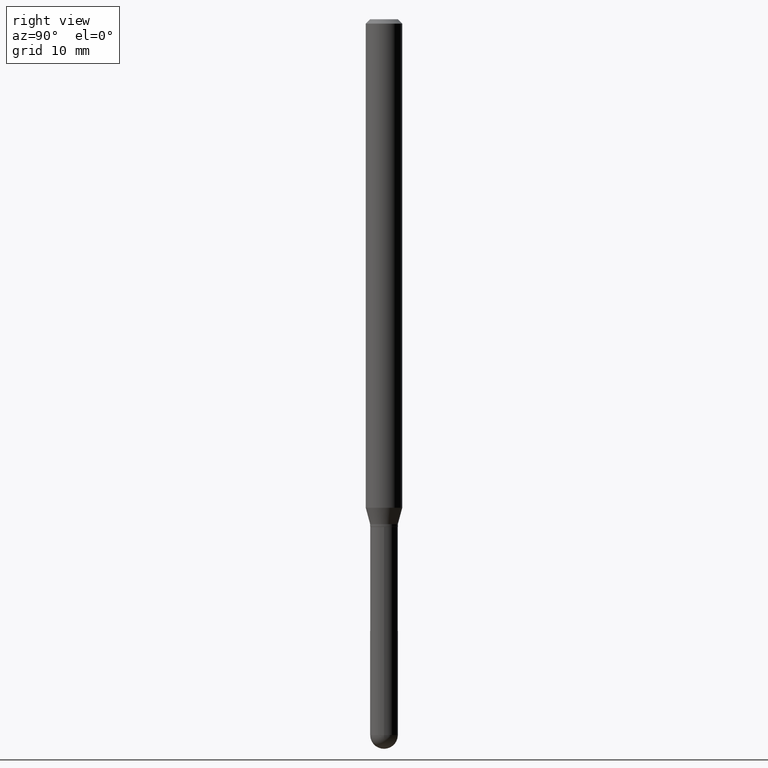
[diagram: clean part render]
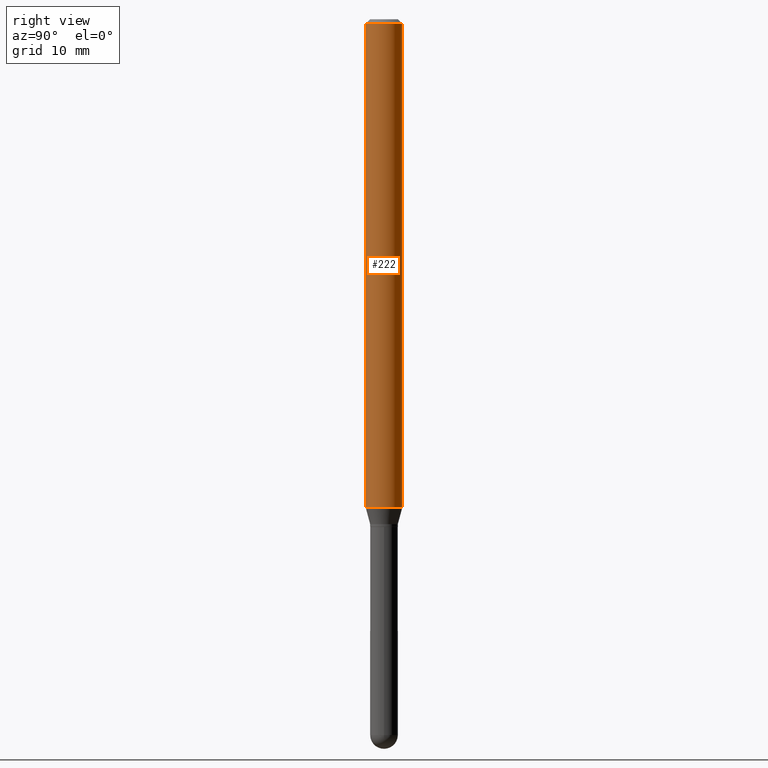
[diagram: same view with one face highlighted and labeled with its STEP entity id]
A machine part, right view. The second image highlights one B-rep face of the part: STEP entity #222.
In plain terms, the highlighted cylindrical surface (edge-blend (fillet) strip) has radius 1.5875 mm, axis along (-0, 0, 1).
Its self-contained STEP definition (entity closure, byte-faithful):
#32 = CARTESIAN_POINT ( 'NONE',  ( 4.440892098501036369E-16, 0.06249999999999418521, -1.674019237886466227 ) ) ;
#45 = CARTESIAN_POINT ( 'NONE',  ( -4.364351673553916201E-16, -0.06250000000000000000, 2.182179900900756299E-16 ) ) ;
#80 = ORIENTED_EDGE ( 'NONE', *, *, #402, .T. ) ;
#82 = DIRECTION ( 'NONE',  ( -2.445464265445177079E-29, 3.491487841441210472E-15, 1.000000000000000000 ) ) ;
#114 = CARTESIAN_POINT ( 'NONE',  ( 4.440892098500625669E-16, 0.06250000000000000000, -2.182179900900756299E-16 ) ) ;
#115 = CARTESIAN_POINT ( 'NONE',  ( -4.364351673553912750E-16, -0.06250000000000005551, -0.01499999999999979128 ) ) ;
#121 = CARTESIAN_POINT ( 'NONE',  ( 4.440892098501038342E-16, 0.06249999999999995143, -0.01500000000000022669 ) ) ;
#135 = AXIS2_PLACEMENT_3D ( 'NONE', #162, #327, #172 ) ;
#137 = EDGE_CURVE ( 'NONE', #394, #446, #190, .T. ) ;
#153 = ORIENTED_EDGE ( 'NONE', *, *, #470, .T. ) ;
#160 = DIRECTION ( 'NONE',  ( -2.445464265445177359E-29, 3.491487841441210078E-15, 1.000000000000000000 ) ) ;
#162 = CARTESIAN_POINT ( 'NONE',  ( 4.093754225919121089E-29, -5.844817815419276990E-15, -1.674019237886465783 ) ) ;
#163 = AXIS2_PLACEMENT_3D ( 'NONE', #422, #457, #507 ) ;
#172 = DIRECTION ( 'NONE',  ( -6.982962677686265922E-15, -1.000000000000000000, 4.370956789862821150E-15 ) ) ;
#190 = LINE ( 'NONE', #45, #350 ) ;
#193 = ORIENTED_EDGE ( 'NONE', *, *, #453, .F. ) ;
#206 = VECTOR ( 'NONE', #82, 39.37007874015748143 ) ;
#222 = ADVANCED_FACE ( 'NONE', ( #501 ), #464, .T. ) ;
#276 = VERTEX_POINT ( 'NONE', #32 ) ;
#277 = CARTESIAN_POINT ( 'NONE',  ( 3.668196398167768421E-31, -5.237231762161818937E-17, -0.01500000000000000812 ) ) ;
#281 = ORIENTED_EDGE ( 'NONE', *, *, #137, .F. ) ;
#327 = DIRECTION ( 'NONE',  ( -2.445464265445177359E-29, 3.491487841441210078E-15, 1.000000000000000000 ) ) ;
#349 = CARTESIAN_POINT ( 'NONE',  ( -4.364351673553505007E-16, -0.06250000000000581479, -1.674019237886465561 ) ) ;
#350 = VECTOR ( 'NONE', #354, 39.37007874015748143 ) ;
#354 = DIRECTION ( 'NONE',  ( -2.445464265445177079E-29, 3.491487841441210472E-15, 1.000000000000000000 ) ) ;
#358 = EDGE_LOOP ( 'NONE', ( #153, #80, #193, #281 ) ) ;
#362 = VERTEX_POINT ( 'NONE', #121 ) ;
#367 = AXIS2_PLACEMENT_3D ( 'NONE', #277, #160, #481 ) ;
#394 = VERTEX_POINT ( 'NONE', #349 ) ;
#395 = LINE ( 'NONE', #114, #206 ) ;
#401 = CIRCLE ( 'NONE', #367, 0.06250000000000000000 ) ;
#402 = EDGE_CURVE ( 'NONE', #276, #362, #395, .T. ) ;
#422 = CARTESIAN_POINT ( 'NONE',  ( 0.000000000000000000, 0.000000000000000000, 0.000000000000000000 ) ) ;
#431 = CIRCLE ( 'NONE', #135, 0.06250000000000000000 ) ;
#446 = VERTEX_POINT ( 'NONE', #115 ) ;
#453 = EDGE_CURVE ( 'NONE', #446, #362, #401, .T. ) ;
#457 = DIRECTION ( 'NONE',  ( -2.445464265445177359E-29, 3.491487841441210078E-15, 1.000000000000000000 ) ) ;
#464 = CYLINDRICAL_SURFACE ( 'NONE', #163, 0.06250000000000000000 ) ;
#470 = EDGE_CURVE ( 'NONE', #394, #276, #431, .T. ) ;
#481 = DIRECTION ( 'NONE',  ( -6.982962677686265922E-15, -1.000000000000000000, 3.483106191921935554E-15 ) ) ;
#501 = FACE_OUTER_BOUND ( 'NONE', #358, .T. ) ;
#507 = DIRECTION ( 'NONE',  ( -6.982962677686265922E-15, -1.000000000000000000, 3.491487841441210078E-15 ) ) ;